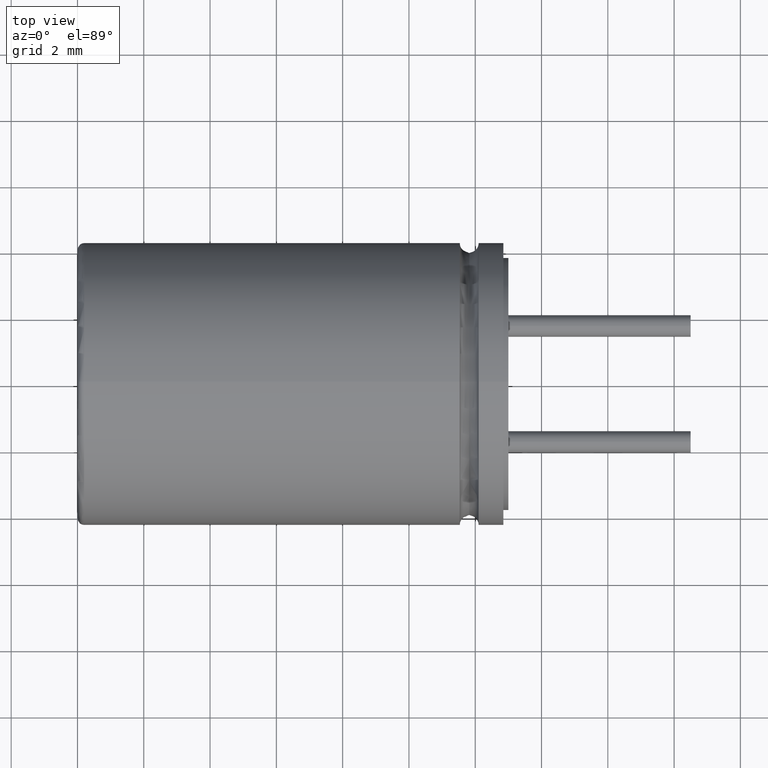
[diagram: clean part render]
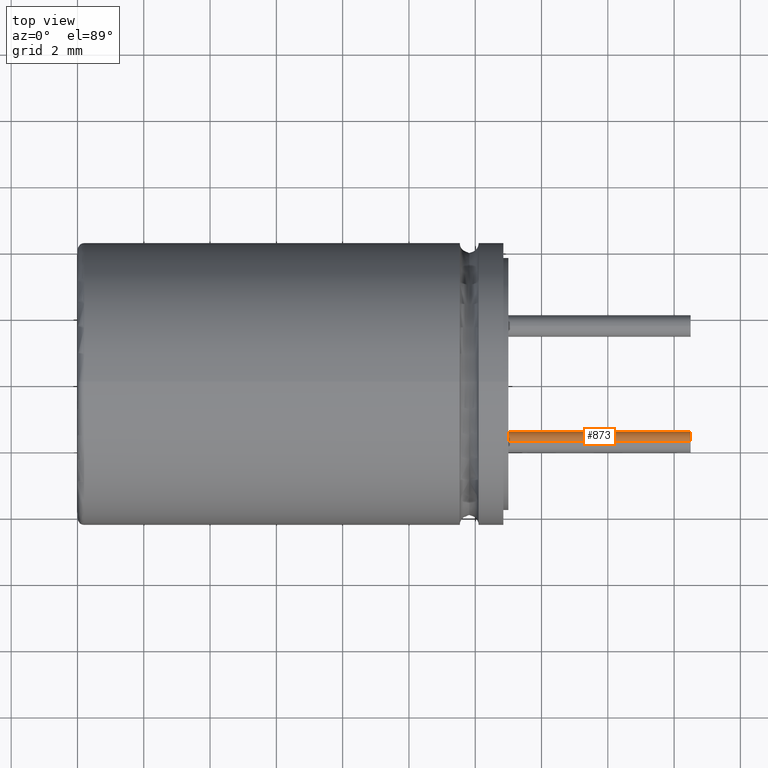
[diagram: same view with one face highlighted and labeled with its STEP entity id]
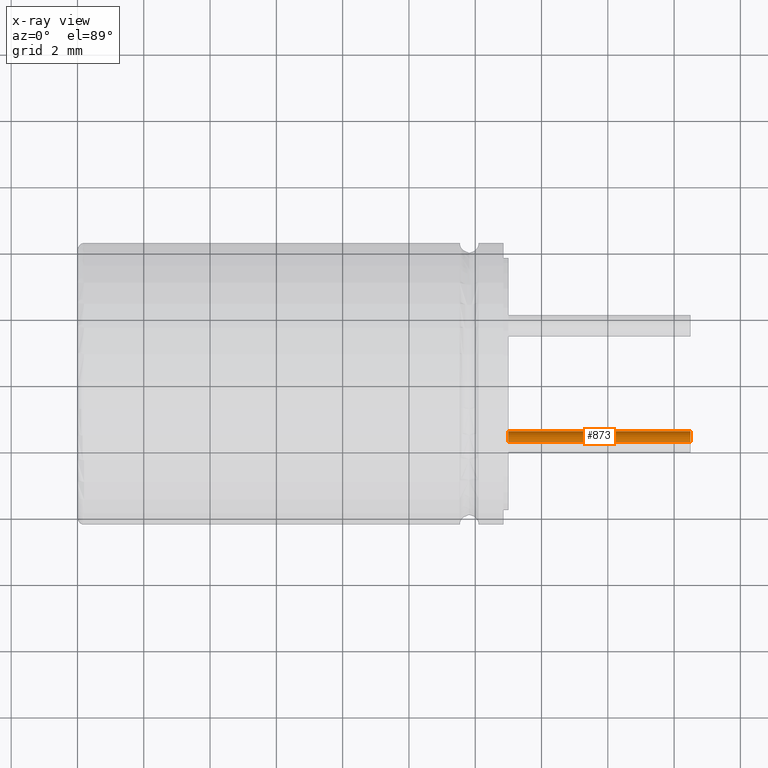
[diagram: x-ray of the same camera — body ghosted, the highlighted face saturated]
A machine part, top view. The second image highlights one B-rep face of the part: STEP entity #873.
The next image is the same camera in x-ray: the body ghosted, the highlighted face saturated — about 0% of this face is hidden behind the body in this view.
In plain terms, the highlighted cylindrical surface (edge-blend (fillet) strip) has radius 0.325 mm, axis along (-1, -0, -0).
Its self-contained STEP definition (entity closure, byte-faithful):
#30 = ORIENTED_EDGE ( 'NONE', *, *, #1832, .T. ) ;
#56 = CYLINDRICAL_SURFACE ( 'NONE', #438, 0.3250000000000000100 ) ;
#202 = EDGE_CURVE ( 'NONE', #429, #1292, #1528, .T. ) ;
#429 = VERTEX_POINT ( 'NONE', #2627 ) ;
#438 = AXIS2_PLACEMENT_3D ( 'NONE', #850, #2728, #2998 ) ;
#486 = AXIS2_PLACEMENT_3D ( 'NONE', #2184, #2507, #2765 ) ;
#580 = CARTESIAN_POINT ( 'NONE',  ( 13.00000000000000200, -1.750000000000000000, 0.3250000000000000100 ) ) ;
#712 = EDGE_CURVE ( 'NONE', #2955, #429, #3516, .T. ) ;
#735 = EDGE_CURVE ( 'NONE', #1728, #1292, #2569, .T. ) ;
#743 = CARTESIAN_POINT ( 'NONE',  ( 18.50000000000000400, -1.750000000000000000, 0.3250000000000000100 ) ) ;
#850 = CARTESIAN_POINT ( 'NONE',  ( 18.50000000000000400, -1.750000000000000000, 0.0000000000000000000 ) ) ;
#873 = ADVANCED_FACE ( 'NONE', ( #3429 ), #56, .T. ) ;
#1007 = CARTESIAN_POINT ( 'NONE',  ( 18.50000000000000400, -1.750000000000000000, -0.3250000000000000100 ) ) ;
#1041 = CARTESIAN_POINT ( 'NONE',  ( 18.50000000000000400, -1.750000000000000000, 0.3250000000000000100 ) ) ;
#1292 = VERTEX_POINT ( 'NONE', #580 ) ;
#1311 = VECTOR ( 'NONE', #1546, 1000.000000000000000 ) ;
#1368 = DIRECTION ( 'NONE',  ( -1.000000000000000000, -0.0000000000000000000, -0.0000000000000000000 ) ) ;
#1528 = CIRCLE ( 'NONE', #486, 0.3250000000000000100 ) ;
#1546 = DIRECTION ( 'NONE',  ( -1.000000000000000000, -0.0000000000000000000, -0.0000000000000000000 ) ) ;
#1728 = VERTEX_POINT ( 'NONE', #1041 ) ;
#1832 = EDGE_CURVE ( 'NONE', #1728, #2955, #3179, .T. ) ;
#1908 = DIRECTION ( 'NONE',  ( 0.0000000000000000000, 0.0000000000000000000, -1.000000000000000000 ) ) ;
#2169 = DIRECTION ( 'NONE',  ( -1.000000000000000000, -0.0000000000000000000, -0.0000000000000000000 ) ) ;
#2184 = CARTESIAN_POINT ( 'NONE',  ( 13.00000000000000200, -1.750000000000000000, 0.0000000000000000000 ) ) ;
#2450 = CARTESIAN_POINT ( 'NONE',  ( 18.50000000000000400, -1.750000000000000000, 0.0000000000000000000 ) ) ;
#2465 = AXIS2_PLACEMENT_3D ( 'NONE', #2450, #2169, #1908 ) ;
#2507 = DIRECTION ( 'NONE',  ( 1.000000000000000000, 0.0000000000000000000, 0.0000000000000000000 ) ) ;
#2544 = ORIENTED_EDGE ( 'NONE', *, *, #202, .T. ) ;
#2569 = LINE ( 'NONE', #743, #2903 ) ;
#2588 = ORIENTED_EDGE ( 'NONE', *, *, #735, .F. ) ;
#2627 = CARTESIAN_POINT ( 'NONE',  ( 13.00000000000000200, -1.750000000000000000, -0.3250000000000000100 ) ) ;
#2658 = CARTESIAN_POINT ( 'NONE',  ( 18.50000000000000400, -1.750000000000000000, -0.3250000000000000100 ) ) ;
#2728 = DIRECTION ( 'NONE',  ( -1.000000000000000000, -0.0000000000000000000, -0.0000000000000000000 ) ) ;
#2765 = DIRECTION ( 'NONE',  ( 0.0000000000000000000, 0.0000000000000000000, -1.000000000000000000 ) ) ;
#2903 = VECTOR ( 'NONE', #1368, 1000.000000000000000 ) ;
#2955 = VERTEX_POINT ( 'NONE', #2658 ) ;
#2998 = DIRECTION ( 'NONE',  ( 0.0000000000000000000, 0.0000000000000000000, 1.000000000000000000 ) ) ;
#3179 = CIRCLE ( 'NONE', #2465, 0.3250000000000000100 ) ;
#3204 = ORIENTED_EDGE ( 'NONE', *, *, #712, .T. ) ;
#3217 = EDGE_LOOP ( 'NONE', ( #30, #3204, #2544, #2588 ) ) ;
#3429 = FACE_OUTER_BOUND ( 'NONE', #3217, .T. ) ;
#3516 = LINE ( 'NONE', #1007, #1311 ) ;